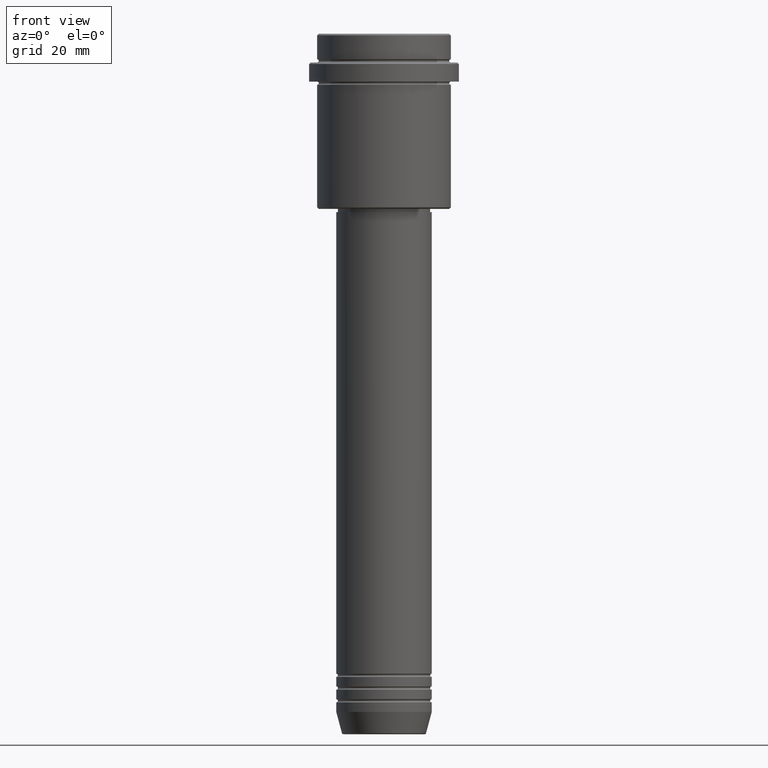
[diagram: clean part render]
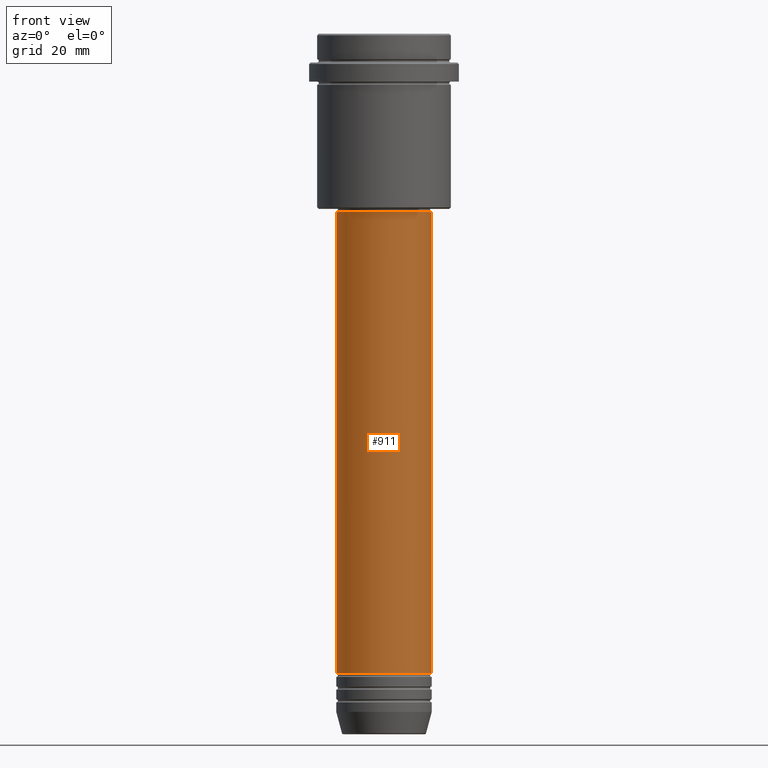
[diagram: same view with one face highlighted and labeled with its STEP entity id]
A machine part, front view. The second image highlights one B-rep face of the part: STEP entity #911.
In plain terms, the highlighted cylindrical surface (partial cylindrical patch) has radius 15 mm, axis along (-0, -0, 1).
Its self-contained STEP definition (entity closure, byte-faithful):
#5 = EDGE_CURVE ( 'NONE', #35, #1397, #804, .T. ) ;
#33 = DIRECTION ( 'NONE',  ( -0.000000000000000000, -0.000000000000000000, 1.000000000000000000 ) ) ;
#35 = VERTEX_POINT ( 'NONE', #1139 ) ;
#71 = AXIS2_PLACEMENT_3D ( 'NONE', #357, #1017, #797 ) ;
#174 = CYLINDRICAL_SURFACE ( 'NONE', #282, 15.00000000000000000 ) ;
#199 = VERTEX_POINT ( 'NONE', #1409 ) ;
#268 = FACE_OUTER_BOUND ( 'NONE', #1150, .T. ) ;
#282 = AXIS2_PLACEMENT_3D ( 'NONE', #1248, #934, #815 ) ;
#301 = EDGE_CURVE ( 'NONE', #199, #35, #531, .T. ) ;
#330 = DIRECTION ( 'NONE',  ( -0.000000000000000000, -0.000000000000000000, 1.000000000000000000 ) ) ;
#353 = CARTESIAN_POINT ( 'NONE',  ( 0.000000000000000000, 0.000000000000000000, -200.9999999999999147 ) ) ;
#357 = CARTESIAN_POINT ( 'NONE',  ( 0.000000000000000000, 0.000000000000000000, -56.00000000000002132 ) ) ;
#446 = CARTESIAN_POINT ( 'NONE',  ( -15.00000000000000000, 1.836970198721029589E-15, -56.00000000000002132 ) ) ;
#484 = VECTOR ( 'NONE', #33, 1000.000000000000000 ) ;
#521 = ORIENTED_EDGE ( 'NONE', *, *, #1354, .F. ) ;
#531 = CIRCLE ( 'NONE', #1301, 15.00000000000000000 ) ;
#574 = DIRECTION ( 'NONE',  ( 1.000000000000000000, 0.000000000000000000, 0.000000000000000000 ) ) ;
#686 = ORIENTED_EDGE ( 'NONE', *, *, #5, .T. ) ;
#709 = DIRECTION ( 'NONE',  ( -0.000000000000000000, -0.000000000000000000, 1.000000000000000000 ) ) ;
#797 = DIRECTION ( 'NONE',  ( 1.000000000000000000, 0.000000000000000000, 0.000000000000000000 ) ) ;
#803 = ORIENTED_EDGE ( 'NONE', *, *, #887, .F. ) ;
#804 = LINE ( 'NONE', #1131, #847 ) ;
#806 = LINE ( 'NONE', #917, #484 ) ;
#815 = DIRECTION ( 'NONE',  ( 1.000000000000000000, 0.000000000000000000, 0.000000000000000000 ) ) ;
#817 = VERTEX_POINT ( 'NONE', #446 ) ;
#847 = VECTOR ( 'NONE', #709, 1000.000000000000000 ) ;
#851 = CIRCLE ( 'NONE', #71, 15.00000000000000000 ) ;
#887 = EDGE_CURVE ( 'NONE', #817, #1397, #851, .T. ) ;
#890 = ORIENTED_EDGE ( 'NONE', *, *, #301, .T. ) ;
#911 = ADVANCED_FACE ( 'NONE', ( #268 ), #174, .T. ) ;
#917 = CARTESIAN_POINT ( 'NONE',  ( -15.00000000000000000, 1.836970198721029589E-15, 0.000000000000000000 ) ) ;
#934 = DIRECTION ( 'NONE',  ( -0.000000000000000000, -0.000000000000000000, 1.000000000000000000 ) ) ;
#1017 = DIRECTION ( 'NONE',  ( -0.000000000000000000, -0.000000000000000000, 1.000000000000000000 ) ) ;
#1131 = CARTESIAN_POINT ( 'NONE',  ( 15.00000000000000000, 0.000000000000000000, 0.000000000000000000 ) ) ;
#1139 = CARTESIAN_POINT ( 'NONE',  ( 15.00000000000000000, 0.000000000000000000, -200.9999999999999147 ) ) ;
#1150 = EDGE_LOOP ( 'NONE', ( #521, #890, #686, #803 ) ) ;
#1246 = CARTESIAN_POINT ( 'NONE',  ( 15.00000000000000000, 0.000000000000000000, -56.00000000000002132 ) ) ;
#1248 = CARTESIAN_POINT ( 'NONE',  ( 0.000000000000000000, 0.000000000000000000, 0.000000000000000000 ) ) ;
#1301 = AXIS2_PLACEMENT_3D ( 'NONE', #353, #330, #574 ) ;
#1354 = EDGE_CURVE ( 'NONE', #199, #817, #806, .T. ) ;
#1397 = VERTEX_POINT ( 'NONE', #1246 ) ;
#1409 = CARTESIAN_POINT ( 'NONE',  ( -15.00000000000000000, 1.836970198721029589E-15, -200.9999999999999147 ) ) ;